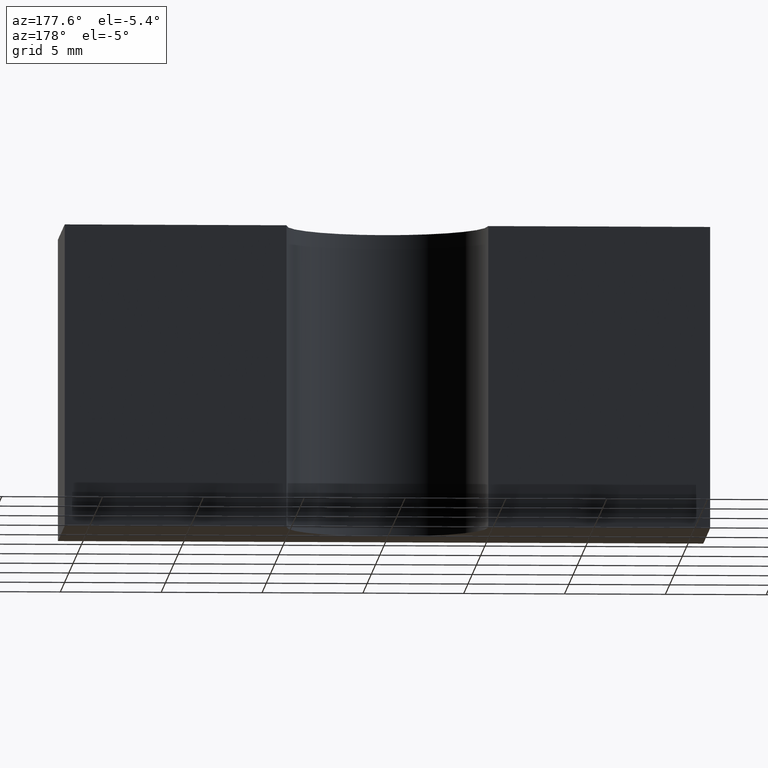
[diagram: clean part render]
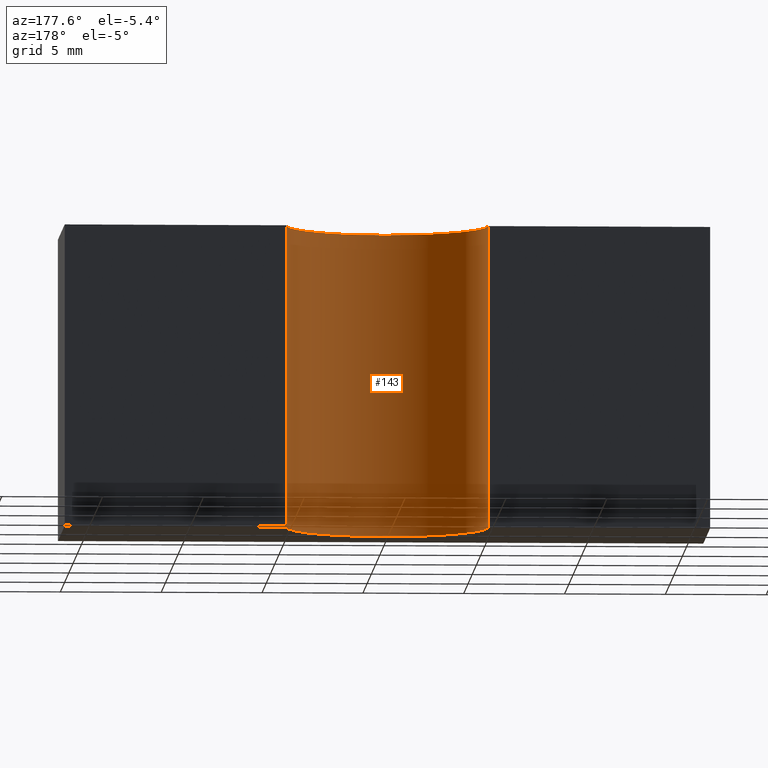
[diagram: same view with one face highlighted and labeled with its STEP entity id]
A machine part, auxiliary view. The second image highlights one B-rep face of the part: STEP entity #143.
In plain terms, the highlighted cylindrical surface (partial cylindrical patch) has radius 5 mm, axis along (0, 0, 1).
Its self-contained STEP definition (entity closure, byte-faithful):
#16=CYLINDRICAL_SURFACE('',#175,5.);
#20=FACE_OUTER_BOUND('',#28,.T.);
#28=EDGE_LOOP('',(#111,#112,#113,#114));
#33=CIRCLE('',#172,5.);
#34=CIRCLE('',#176,5.);
#44=LINE('',#242,#60);
#45=LINE('',#246,#61);
#60=VECTOR('',#200,10.);
#61=VECTOR('',#205,10.);
#71=VERTEX_POINT('',#228);
#72=VERTEX_POINT('',#230);
#75=VERTEX_POINT('',#240);
#76=VERTEX_POINT('',#244);
#83=EDGE_CURVE('',#72,#71,#33,.T.);
#89=EDGE_CURVE('',#71,#75,#44,.T.);
#90=EDGE_CURVE('',#75,#76,#34,.T.);
#91=EDGE_CURVE('',#72,#76,#45,.T.);
#111=ORIENTED_EDGE('',*,*,#90,.T.);
#112=ORIENTED_EDGE('',*,*,#91,.F.);
#113=ORIENTED_EDGE('',*,*,#83,.T.);
#114=ORIENTED_EDGE('',*,*,#89,.T.);
#143=ADVANCED_FACE('',(#20),#16,.F.);
#172=AXIS2_PLACEMENT_3D('',#231,#189,#190);
#175=AXIS2_PLACEMENT_3D('',#243,#201,#202);
#176=AXIS2_PLACEMENT_3D('',#245,#203,#204);
#189=DIRECTION('center_axis',(0.,0.,-1.));
#190=DIRECTION('ref_axis',(1.,-1.11022302462516E-16,0.));
#200=DIRECTION('',(0.,0.,1.));
#201=DIRECTION('center_axis',(0.,0.,1.));
#202=DIRECTION('ref_axis',(1.,-1.11022302462516E-16,0.));
#203=DIRECTION('center_axis',(0.,0.,1.));
#204=DIRECTION('ref_axis',(1.,-1.11022302462516E-16,0.));
#205=DIRECTION('',(0.,0.,1.));
#228=CARTESIAN_POINT('',(-5.,4.,-7.5));
#230=CARTESIAN_POINT('',(5.,4.,-7.5));
#231=CARTESIAN_POINT('Origin',(0.,4.,-7.5));
#240=CARTESIAN_POINT('',(-5.,4.,7.5));
#242=CARTESIAN_POINT('',(-5.,4.,0.));
#243=CARTESIAN_POINT('Origin',(0.,4.,0.));
#244=CARTESIAN_POINT('',(5.,4.,7.5));
#245=CARTESIAN_POINT('Origin',(0.,4.,7.5));
#246=CARTESIAN_POINT('',(5.,4.,0.));